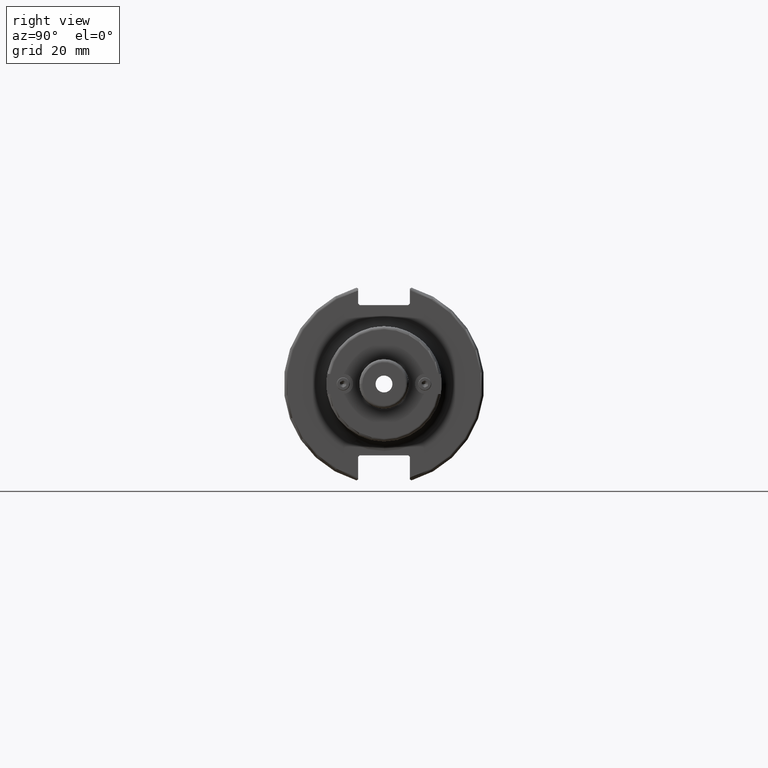
[diagram: clean part render]
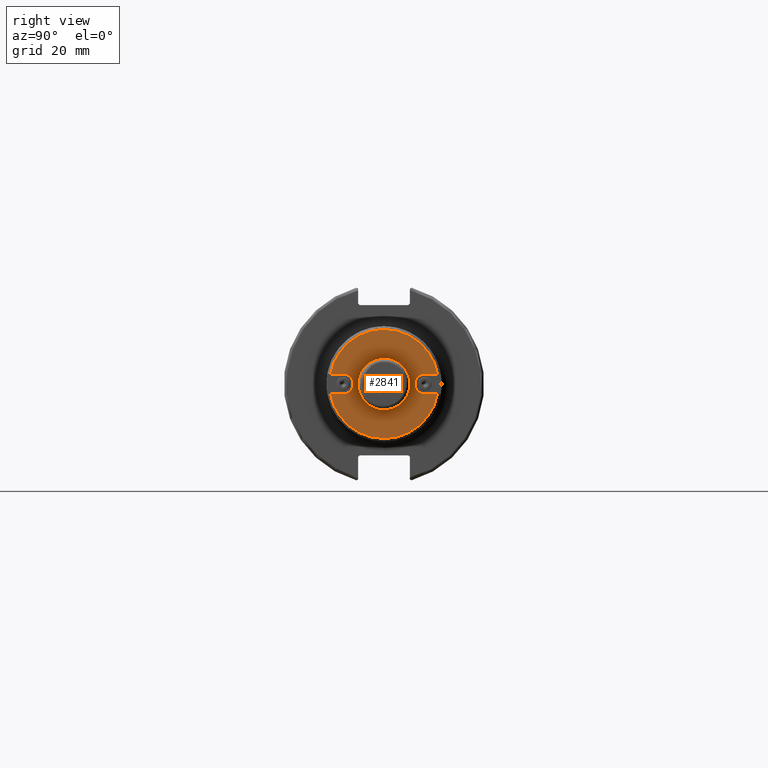
[diagram: same view with one face highlighted and labeled with its STEP entity id]
A machine part, right view. The second image highlights one B-rep face of the part: STEP entity #2841.
In plain terms, the highlighted planar face has unit normal (1, 0, 0).
Its self-contained STEP definition (entity closure, byte-faithful):
#215=FACE_BOUND('',#411,.T.);
#253=FACE_OUTER_BOUND('',#410,.T.);
#410=EDGE_LOOP('',(#1945,#1946,#1947,#1948,#1949,#1950,#1951,#1952));
#411=EDGE_LOOP('',(#1953,#1954));
#579=LINE('',#4398,#753);
#584=LINE('',#4436,#758);
#593=LINE('',#4502,#767);
#594=LINE('',#4504,#768);
#753=VECTOR('',#3475,10.);
#758=VECTOR('',#3494,10.);
#767=VECTOR('',#3541,10.);
#768=VECTOR('',#3544,10.);
#930=CIRCLE('',#3093,3.175);
#937=CIRCLE('',#3103,17.265);
#942=CIRCLE('',#3111,3.175);
#944=CIRCLE('',#3117,17.265);
#945=CIRCLE('',#3118,8.2);
#946=CIRCLE('',#3119,8.2);
#1121=VERTEX_POINT('',#4395);
#1122=VERTEX_POINT('',#4397);
#1126=VERTEX_POINT('',#4419);
#1128=VERTEX_POINT('',#4425);
#1136=VERTEX_POINT('',#4455);
#1142=VERTEX_POINT('',#4481);
#1143=VERTEX_POINT('',#4482);
#1146=VERTEX_POINT('',#4490);
#1147=VERTEX_POINT('',#4509);
#1148=VERTEX_POINT('',#4510);
#1432=EDGE_CURVE('',#1122,#1121,#579,.T.);
#1438=EDGE_CURVE('',#1121,#1126,#930,.T.);
#1442=EDGE_CURVE('',#1126,#1128,#584,.T.);
#1452=EDGE_CURVE('',#1122,#1136,#937,.T.);
#1460=EDGE_CURVE('',#1142,#1143,#942,.T.);
#1466=EDGE_CURVE('',#1146,#1142,#593,.T.);
#1467=EDGE_CURVE('',#1143,#1136,#594,.T.);
#1469=EDGE_CURVE('',#1146,#1128,#944,.T.);
#1470=EDGE_CURVE('',#1147,#1148,#945,.T.);
#1471=EDGE_CURVE('',#1148,#1147,#946,.T.);
#1945=ORIENTED_EDGE('',*,*,#1442,.T.);
#1946=ORIENTED_EDGE('',*,*,#1469,.F.);
#1947=ORIENTED_EDGE('',*,*,#1466,.T.);
#1948=ORIENTED_EDGE('',*,*,#1460,.T.);
#1949=ORIENTED_EDGE('',*,*,#1467,.T.);
#1950=ORIENTED_EDGE('',*,*,#1452,.F.);
#1951=ORIENTED_EDGE('',*,*,#1432,.T.);
#1952=ORIENTED_EDGE('',*,*,#1438,.T.);
#1953=ORIENTED_EDGE('',*,*,#1470,.F.);
#1954=ORIENTED_EDGE('',*,*,#1471,.F.);
#2758=PLANE('',#3116);
#2841=ADVANCED_FACE('',(#253,#215),#2758,.T.);
#3093=AXIS2_PLACEMENT_3D('',#4420,#3488,#3489);
#3103=AXIS2_PLACEMENT_3D('',#4456,#3514,#3515);
#3111=AXIS2_PLACEMENT_3D('',#4483,#3532,#3533);
#3116=AXIS2_PLACEMENT_3D('',#4507,#3548,#3549);
#3117=AXIS2_PLACEMENT_3D('',#4508,#3550,#3551);
#3118=AXIS2_PLACEMENT_3D('',#4511,#3552,#3553);
#3119=AXIS2_PLACEMENT_3D('',#4512,#3554,#3555);
#3475=DIRECTION('',(0.,1.,9.25906275187091E-17));
#3488=DIRECTION('center_axis',(-1.,0.,0.));
#3489=DIRECTION('ref_axis',(0.,-1.22464679914735E-16,-1.));
#3494=DIRECTION('',(0.,-1.,6.87008530563742E-17));
#3514=DIRECTION('center_axis',(-1.,0.,0.));
#3515=DIRECTION('ref_axis',(0.,-1.,1.83697019872103E-16));
#3532=DIRECTION('center_axis',(-1.,0.,0.));
#3533=DIRECTION('ref_axis',(0.,0.,1.));
#3541=DIRECTION('',(0.,-1.,-2.15055307433444E-16));
#3544=DIRECTION('',(0.,1.,5.37638268583611E-17));
#3548=DIRECTION('center_axis',(1.,0.,0.));
#3549=DIRECTION('ref_axis',(0.,0.,-1.));
#3550=DIRECTION('center_axis',(-1.,0.,0.));
#3551=DIRECTION('ref_axis',(0.,-1.,1.83697019872103E-16));
#3552=DIRECTION('center_axis',(1.,0.,0.));
#3553=DIRECTION('ref_axis',(0.,0.,-1.));
#3554=DIRECTION('center_axis',(1.,0.,0.));
#3555=DIRECTION('ref_axis',(0.,0.,-1.));
#4395=CARTESIAN_POINT('',(119.888,-12.94,3.175));
#4397=CARTESIAN_POINT('',(119.888,-16.97055096336,3.175));
#4398=CARTESIAN_POINT('',(119.888,-7.5325,3.175));
#4419=CARTESIAN_POINT('',(119.888,-12.94,-3.175));
#4420=CARTESIAN_POINT('Origin',(119.888,-12.94,1.58469295809668E-15));
#4425=CARTESIAN_POINT('',(119.888,-16.97055096336,-3.175));
#4436=CARTESIAN_POINT('',(119.888,-2.37,-3.175));
#4455=CARTESIAN_POINT('',(119.888,16.97055096336,3.175));
#4456=CARTESIAN_POINT('Origin',(119.888,0.,0.));
#4481=CARTESIAN_POINT('',(119.888,12.94,-3.175));
#4482=CARTESIAN_POINT('',(119.888,12.94,3.175));
#4483=CARTESIAN_POINT('Origin',(119.888,12.94,0.));
#4490=CARTESIAN_POINT('',(119.888,16.97055096336,-3.175));
#4502=CARTESIAN_POINT('',(119.888,15.7325,-3.175));
#4504=CARTESIAN_POINT('',(119.888,10.57,3.175));
#4507=CARTESIAN_POINT('Origin',(119.888,8.2,0.));
#4508=CARTESIAN_POINT('Origin',(119.888,0.,0.));
#4509=CARTESIAN_POINT('',(119.888,8.2,0.));
#4510=CARTESIAN_POINT('',(119.888,-8.2,-1.00421037530083E-15));
#4511=CARTESIAN_POINT('Origin',(119.888,0.,0.));
#4512=CARTESIAN_POINT('Origin',(119.888,0.,0.));